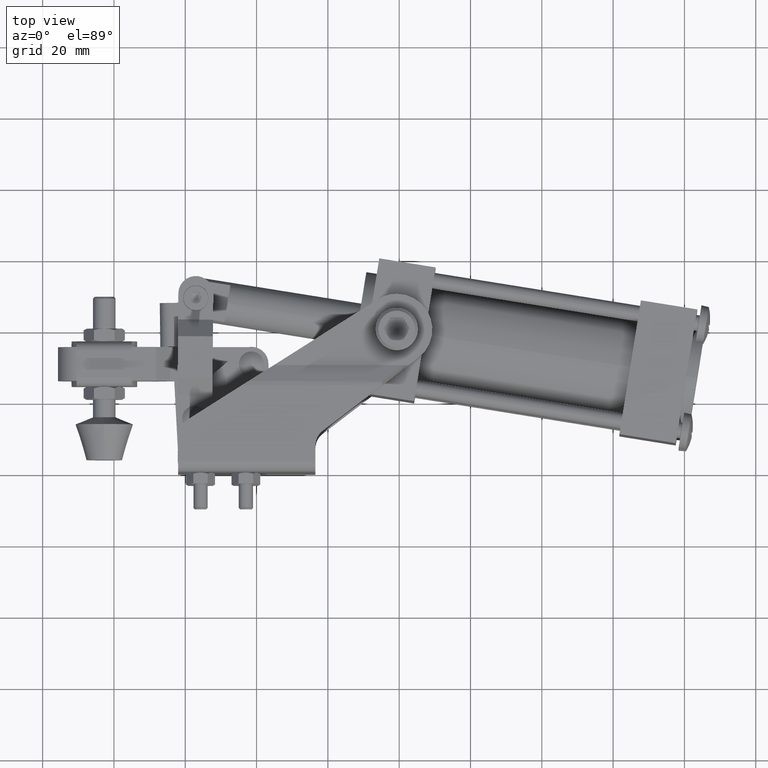
[diagram: clean part render]
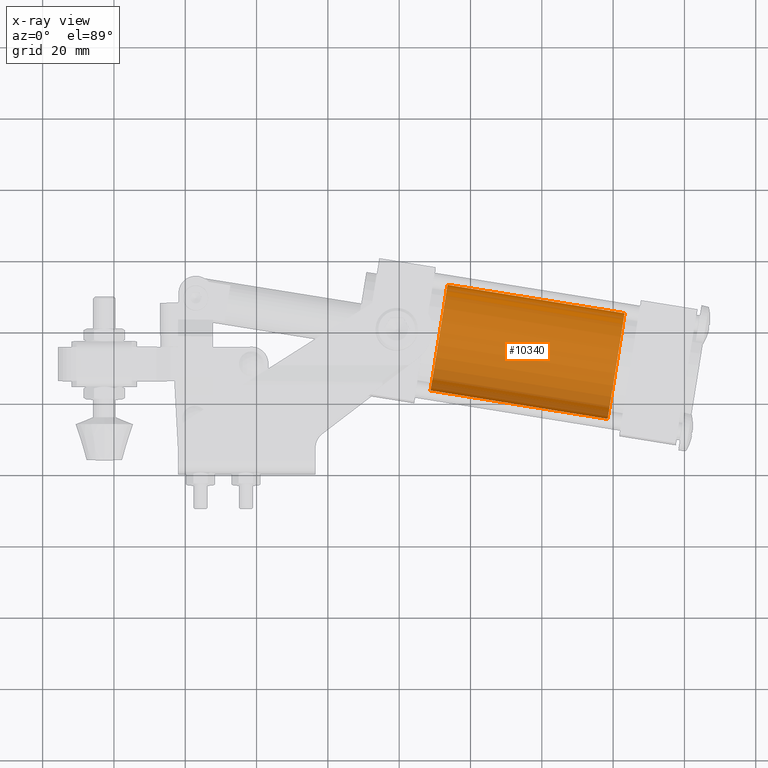
[diagram: x-ray — body ghosted, one internal face saturated and labeled with its STEP entity id]
A machine part, top view, then the same camera in x-ray: the body is ghosted and one INTERNAL B-rep face — a face not visible from any outside direction — is saturated and labeled: STEP entity #10340.
In plain terms, the highlighted cylindrical surface (partial cylindrical patch) has radius 15 mm, axis along (-0.9874, 0.1585, 0).
Its self-contained STEP definition (entity closure, byte-faithful):
#1843 = CARTESIAN_POINT ( 'NONE',  ( 33.52640962532388600, 52.90772130054342900, -1.719940365752415000E-013 ) ) ;
#3893 = DIRECTION ( 'NONE',  ( -0.9873515853984645700, 0.1585460400361315100, 1.306212789964399800E-016 ) ) ;
#4880 = DIRECTION ( 'NONE',  ( 0.9873515853984644600, -0.1585460400361315100, -1.306212789964399800E-016 ) ) ;
#5249 = DIRECTION ( 'NONE',  ( -0.9873515853984644600, 0.1585460400361315100, 1.306212789964399600E-016 ) ) ;
#7308 = CIRCLE ( 'NONE', #7651, 14.99999999999999500 ) ;
#7651 = AXIS2_PLACEMENT_3D ( 'NONE', #19192, #4880, #21552 ) ;
#8460 = CARTESIAN_POINT ( 'NONE',  ( 80.81200377032543300, 30.12258170574891700, -1.804012571074835600E-013 ) ) ;
#9914 = CYLINDRICAL_SURFACE ( 'NONE', #28353, 15.00000000000000000 ) ;
#10171 = ORIENTED_EDGE ( 'NONE', *, *, #30634, .F. ) ;
#10234 = LINE ( 'NONE', #12373, #22202 ) ;
#10340 = ADVANCED_FACE ( 'NONE', ( #17106 ), #9914, .F. ) ;
#10434 = VERTEX_POINT ( 'NONE', #23664 ) ;
#10838 = VERTEX_POINT ( 'NONE', #21034 ) ;
#10888 = DIRECTION ( 'NONE',  ( -0.1585460400361310700, -0.9873515853984645700, 0.0000000000000000000 ) ) ;
#11268 = VERTEX_POINT ( 'NONE', #1843 ) ;
#11877 = AXIS2_PLACEMENT_3D ( 'NONE', #8460, #25213, #10888 ) ;
#12373 = CARTESIAN_POINT ( 'NONE',  ( 129.0293807994938500, 37.57213252419200700, -1.846285635534868500E-013 ) ) ;
#14212 = EDGE_LOOP ( 'NONE', ( #26040, #15606, #28569, #10171 ) ) ;
#14770 = DIRECTION ( 'NONE',  ( -0.9873515853984645700, 0.1585460400361315100, 1.306212789964399800E-016 ) ) ;
#15606 = ORIENTED_EDGE ( 'NONE', *, *, #26069, .T. ) ;
#15705 = CARTESIAN_POINT ( 'NONE',  ( 124.2729995984099000, 7.951584962238073700, -1.864655337522078800E-013 ) ) ;
#17106 = FACE_OUTER_BOUND ( 'NONE', #14212, .T. ) ;
#18206 = LINE ( 'NONE', #15705, #23756 ) ;
#18748 = DIRECTION ( 'NONE',  ( -0.1585460400361319900, -0.9873515853984644600, 0.0000000000000000000 ) ) ;
#19192 = CARTESIAN_POINT ( 'NONE',  ( 31.14821902478190200, 38.09744751956645800, -1.738310067739625500E-013 ) ) ;
#19520 = CARTESIAN_POINT ( 'NONE',  ( 28.77002842423993900, 23.28717373858948400, -1.738310067739625500E-013 ) ) ;
#21034 = CARTESIAN_POINT ( 'NONE',  ( 78.43381316978346300, 15.31230792477195000, -1.804012571074835600E-013 ) ) ;
#21552 = DIRECTION ( 'NONE',  ( 0.1585460400361315700, 0.9873515853984644600, 0.0000000000000000000 ) ) ;
#22202 = VECTOR ( 'NONE', #14770, 1000.000000000000100 ) ;
#23664 = CARTESIAN_POINT ( 'NONE',  ( 83.19019437086741700, 44.93285548672589200, -1.785642869087625300E-013 ) ) ;
#23756 = VECTOR ( 'NONE', #3893, 1000.000000000000100 ) ;
#25159 = EDGE_CURVE ( 'NONE', #27683, #11268, #7308, .T. ) ;
#25213 = DIRECTION ( 'NONE',  ( -0.9873515853984645700, 0.1585460400361314000, 1.306212789964209000E-016 ) ) ;
#25678 = CARTESIAN_POINT ( 'NONE',  ( 126.6511901989518800, 22.76185874321504000, -1.864655337522078800E-013 ) ) ;
#26040 = ORIENTED_EDGE ( 'NONE', *, *, #27366, .F. ) ;
#26069 = EDGE_CURVE ( 'NONE', #10434, #11268, #10234, .T. ) ;
#27366 = EDGE_CURVE ( 'NONE', #10434, #10838, #30786, .T. ) ;
#27683 = VERTEX_POINT ( 'NONE', #19520 ) ;
#28353 = AXIS2_PLACEMENT_3D ( 'NONE', #25678, #5249, #18748 ) ;
#28569 = ORIENTED_EDGE ( 'NONE', *, *, #25159, .F. ) ;
#30634 = EDGE_CURVE ( 'NONE', #10838, #27683, #18206, .T. ) ;
#30786 = CIRCLE ( 'NONE', #11877, 14.99999999999999600 ) ;